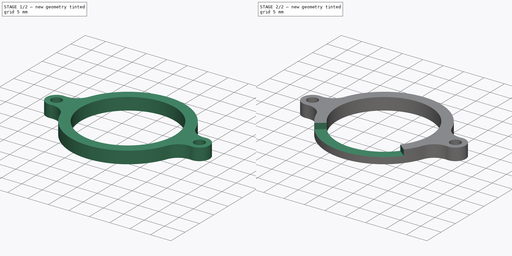
[diagram: build sequence overview — one tinted view per stage of 2, left to right]
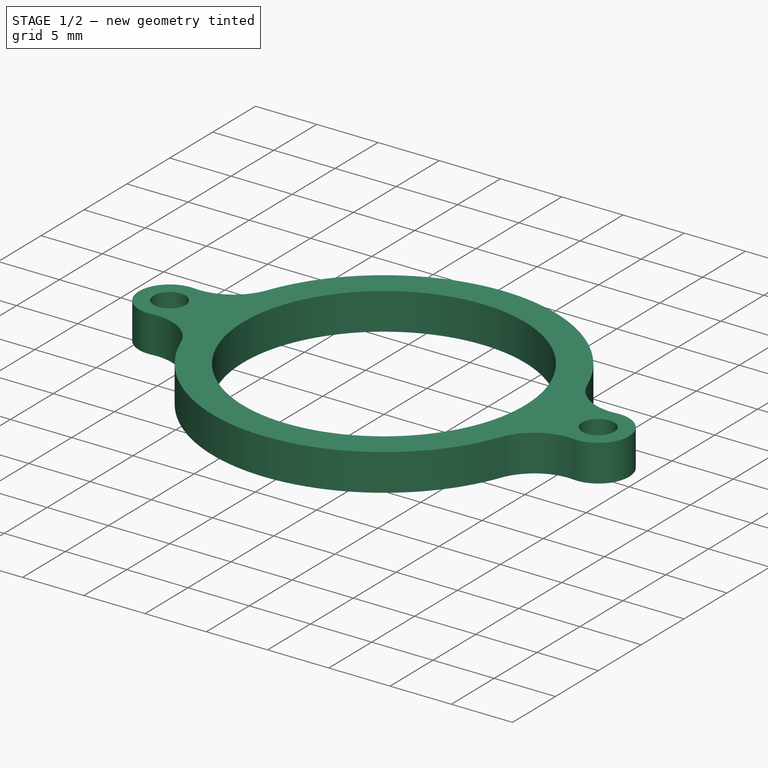
[diagram: stage 1 of 2 — iso view after this stage's code; geometry added in this stage tinted green]
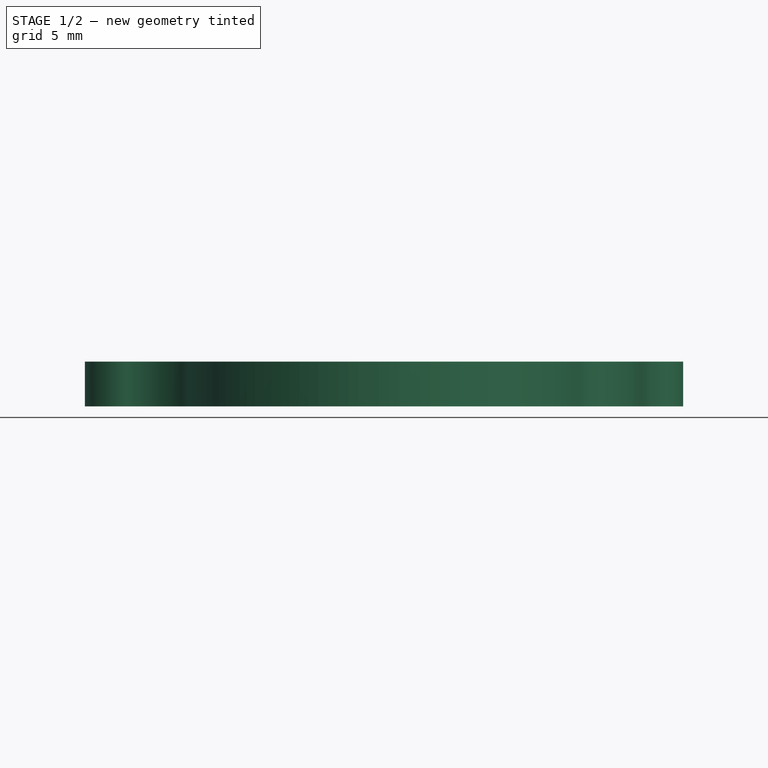
[diagram: stage 1 of 2 — front view after this stage's code; geometry added in this stage tinted green]
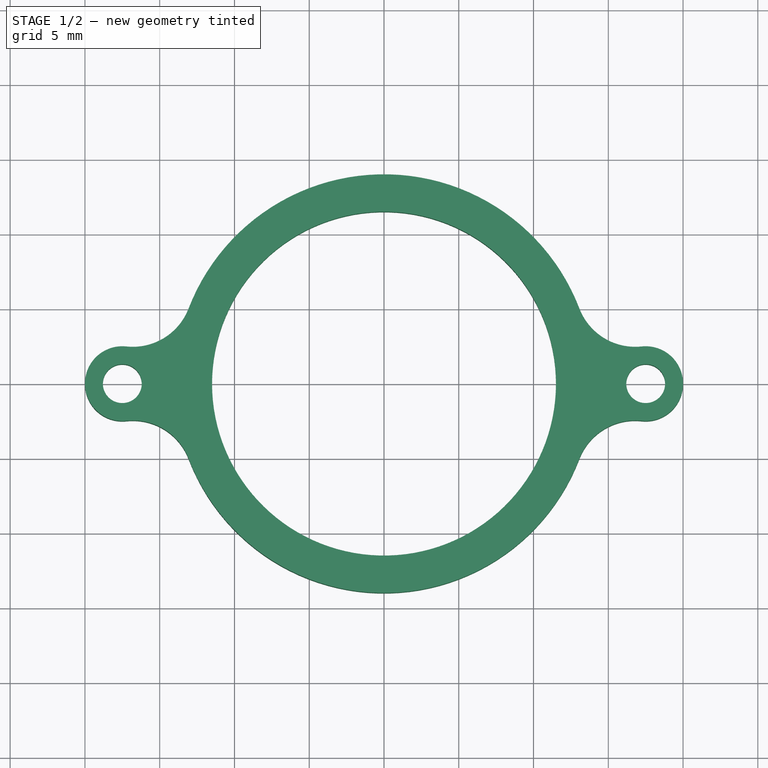
[diagram: stage 1 of 2 — top view after this stage's code; geometry added in this stage tinted green]
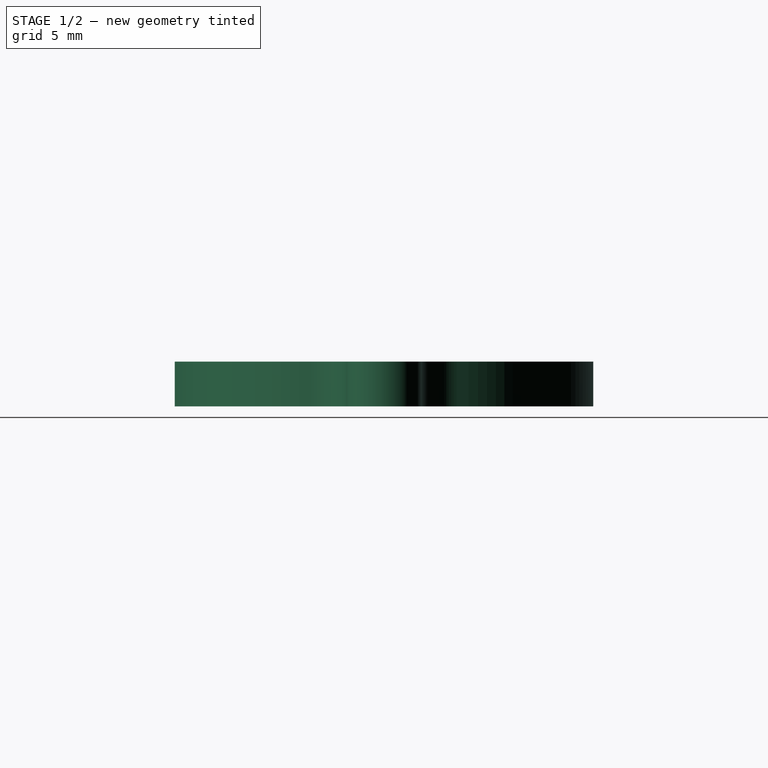
[diagram: stage 1 of 2 — right view after this stage's code; geometry added in this stage tinted green]
FCSTD DOCUMENT  (FreeCAD 0.18.3R)
Label: speaker-clip
License: CreativeCommons Attribution
LicenseURL: http://creativecommons.org/licenses/by/4.0/
objects: Sketcher::SketchObject×2, PartDesign::Pad×1, PartDesign::Pocket×1, PartDesign::Body×1
note: 7 computed .brp shape members not serialized (recipe doc carries the construction recipe); baked Part::Feature solids carry a one-line shape summary decoded from their .brp

FEATURE [Sketcher::SketchObject] Sketch
  MapMode = 5
  Support = -> [XY_Plane]
  sketch-geometry (11):
    g0: Circle CenterX=0 CenterY=0 CenterZ=0 NormalX=0 NormalY=0 NormalZ=1 AngleXU=0 Radius=11.5
    g1: Circle CenterX=-17.5 CenterY=0 CenterZ=0 NormalX=0 NormalY=0 NormalZ=1 AngleXU=0 Radius=1.3
    g2: Circle CenterX=17.5 CenterY=0 CenterZ=0 NormalX=0 NormalY=0 NormalZ=1 AngleXU=0 Radius=1.3
    g3: ArcOfCircle CenterX=0 CenterY=0 CenterZ=0 NormalX=0 NormalY=0 NormalZ=1 AngleXU=0 Radius=14 StartAngle=0.367208 EndAngle=2.77438
    g4: ArcOfCircle CenterX=17.5 CenterY=0 CenterZ=0 NormalX=0 NormalY=0 NormalZ=1 AngleXU=0 Radius=2.5 StartAngle=4.60449 EndAngle=7.96188
    g5: ArcOfCircle CenterX=0 CenterY=0 CenterZ=0 NormalX=0 NormalY=0 NormalZ=1 AngleXU=0 Radius=14 StartAngle=3.5088 EndAngle=5.91598
    g6: ArcOfCircle CenterX=-16.8 CenterY=6.4622 CenterZ=0 NormalX=0 NormalY=0 NormalZ=1 AngleXU=0 Radius=4 StartAngle=4.60449 EndAngle=5.91598
    g7: ArcOfCircle CenterX=-16.8 CenterY=-6.4622 CenterZ=0 NormalX=0 NormalY=0 NormalZ=1 AngleXU=0 Radius=4 StartAngle=0.367208 EndAngle=1.6787
    g8: ArcOfCircle CenterX=16.8 CenterY=-6.4622 CenterZ=0 NormalX=0 NormalY=0 NormalZ=1 AngleXU=0 Radius=4 StartAngle=1.46289 EndAngle=2.77438
    g9: ArcOfCircle CenterX=16.8 CenterY=6.4622 CenterZ=0 NormalX=0 NormalY=0 NormalZ=1 AngleXU=0 Radius=4 StartAngle=3.5088 EndAngle=4.82029
    g10: ArcOfCircle CenterX=-17.5 CenterY=0 CenterZ=0 NormalX=0 NormalY=0 NormalZ=1 AngleXU=0 Radius=2.5 StartAngle=1.46289 EndAngle=4.82029
  constraints (27):
    c: Coincident(g0,g-1)
    c: PointOnObject(g1,g-1)
    c: Coincident(g3,g0)
    c: Coincident(g4,g2)
    c: Coincident(g5,g0)
    c: Tangent(g7,g5) = 1.5708
    c: Tangent(g6,g3) = 1.5708
    c: Equal(g5,g3)
    c: Tangent(g8,g5) = 1.5708
    c: Tangent(g8,g4) = 1.5708
    c: Tangent(g9,g4) = 1.5708
    c: Tangent(g9,g3) = 1.5708
    c: Coincident(g10,g1)
    c: Tangent(g10,g7) = 1.5708
    c: Tangent(g10,g6) = 1.5708
    c: Equal(g4,g10)
    c: Symmetric(g1,g2,g0)
    c: DistanceX(g1,g2) = 35
    c: Radius(g0) = 11.5
    c: Equal(g9,g6)
    c: Equal(g6,g7)
    c: Radius(g1) = 1.3
    c: Radius(g10) = 2.5
    c: Radius(g3) = 14
    c: Radius(g6) = 4
    c: Equal(g2,g1)
    c: Equal(g8,g9)
FEATURE [PartDesign::Pad] Pad
  Length = 3
  Length2 = 100
  Profile = -> Sketch
  Refine = true
  Type = 0
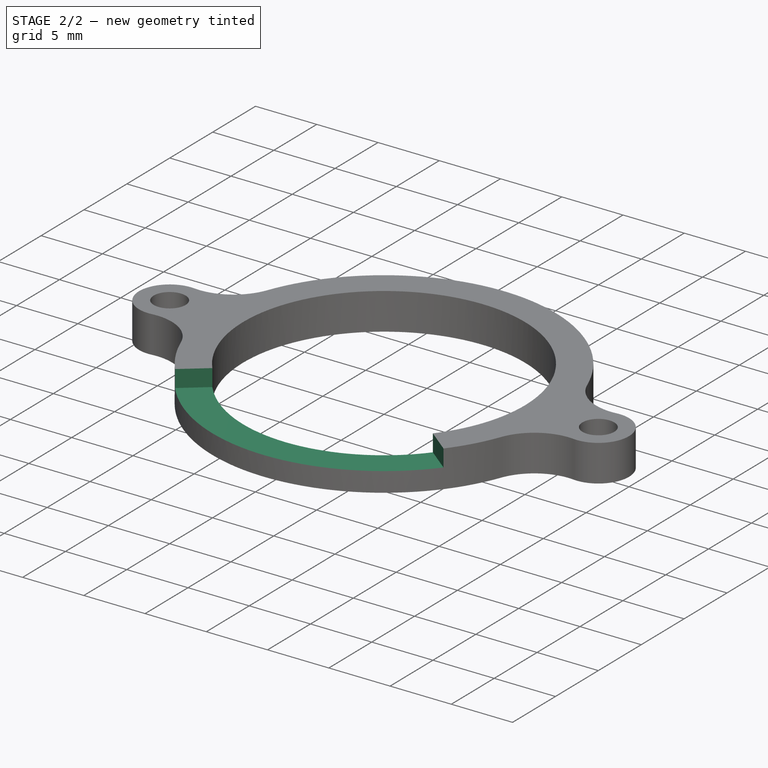
[diagram: stage 2 of 2 — iso view after this stage's code; geometry added in this stage tinted green]
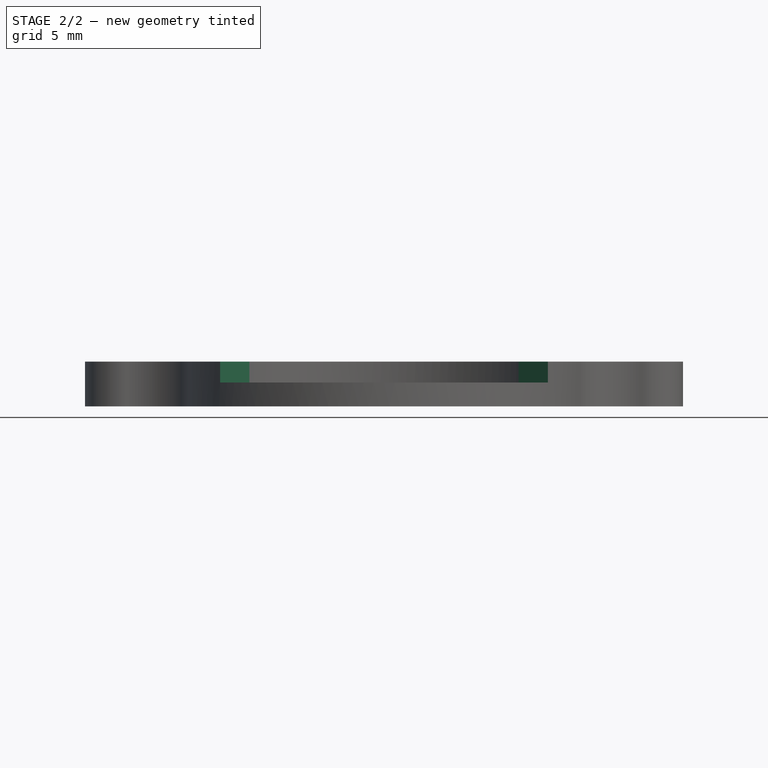
[diagram: stage 2 of 2 — front view after this stage's code; geometry added in this stage tinted green]
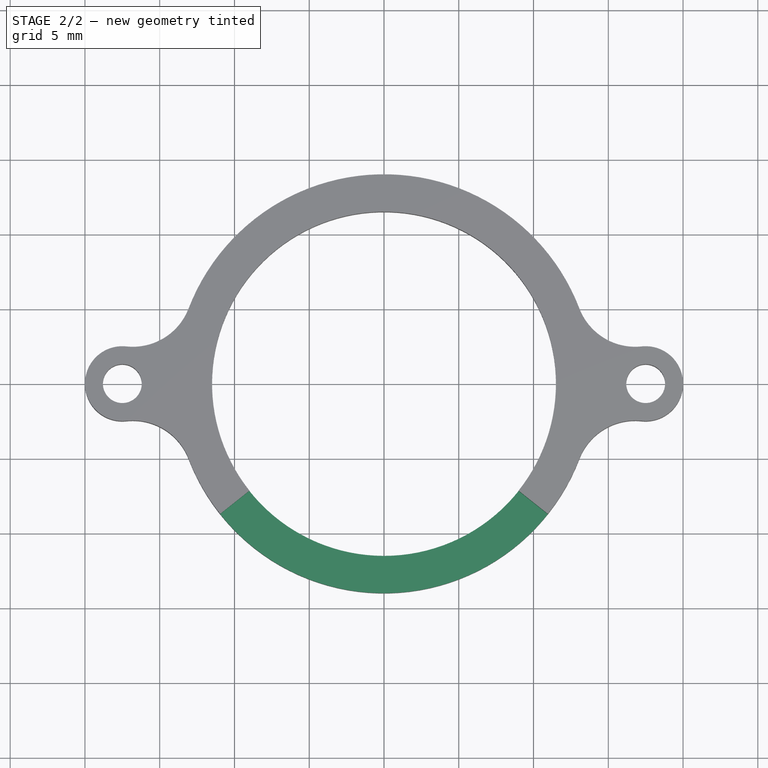
[diagram: stage 2 of 2 — top view after this stage's code; geometry added in this stage tinted green]
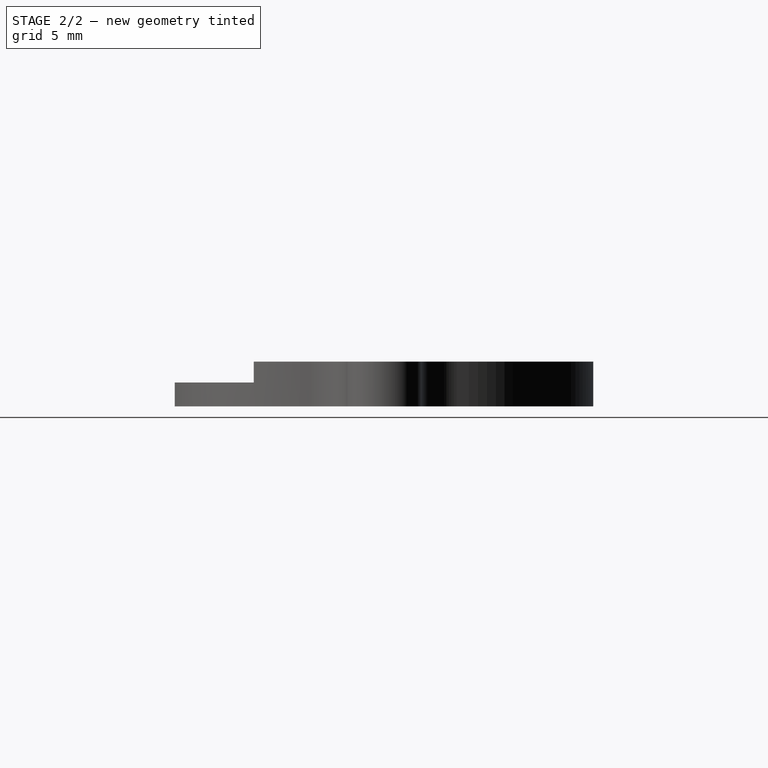
[diagram: stage 2 of 2 — right view after this stage's code; geometry added in this stage tinted green]
FEATURE [Sketcher::SketchObject] Sketch001
  ExternalGeometry = -> [Pad]
  MapMode = 5
  Placement = pos=(0,0,3) rot=(0,0,1;0rad)
  Support = -> [Pad]
  sketch-geometry (4):
    g0: ArcOfCircle CenterX=0 CenterY=0 CenterZ=0 NormalX=0 NormalY=0 NormalZ=1 AngleXU=0 Radius=11.5 StartAngle=3.81354 EndAngle=5.61123
    g1: ArcOfCircle CenterX=0 CenterY=0 CenterZ=0 NormalX=0 NormalY=0 NormalZ=1 AngleXU=0 Radius=14 StartAngle=3.81354 EndAngle=5.61123
    g2: LineSegment StartX=-10.9565 StartY=-8.7152 StartZ=0 EndX=-9 EndY=-7.15891 EndZ=0
    g3: LineSegment StartX=10.9565 StartY=-8.7152 StartZ=0 EndX=9 EndY=-7.15891 EndZ=0
  constraints (12):
    c: Coincident(g0,g-1)
    c: PointOnObject(g0,g-3)
    c: Coincident(g1,g0)
    c: PointOnObject(g1,g-4)
    c: Coincident(g2,g1)
    c: Coincident(g2,g0)
    c: Coincident(g3,g1)
    c: Coincident(g3,g0)
    c: Perpendicular(g0,g2)
    c: Perpendicular(g-3,g3)
    c: Symmetric(g0,g0,g-2)
    c: DistanceX(g0,g0) = 18
FEATURE [PartDesign::Pocket] Pocket
  BaseFeature = -> Pad
  Length = 1.4
  Length2 = 100
  Profile = -> Sketch001
  Refine = true
  Type = 0
FEATURE [PartDesign::Body] Body
  Group = -> [Sketch,Pad,Sketch001,Pocket]
  Origin = -> Origin
  Tip = -> Pocket
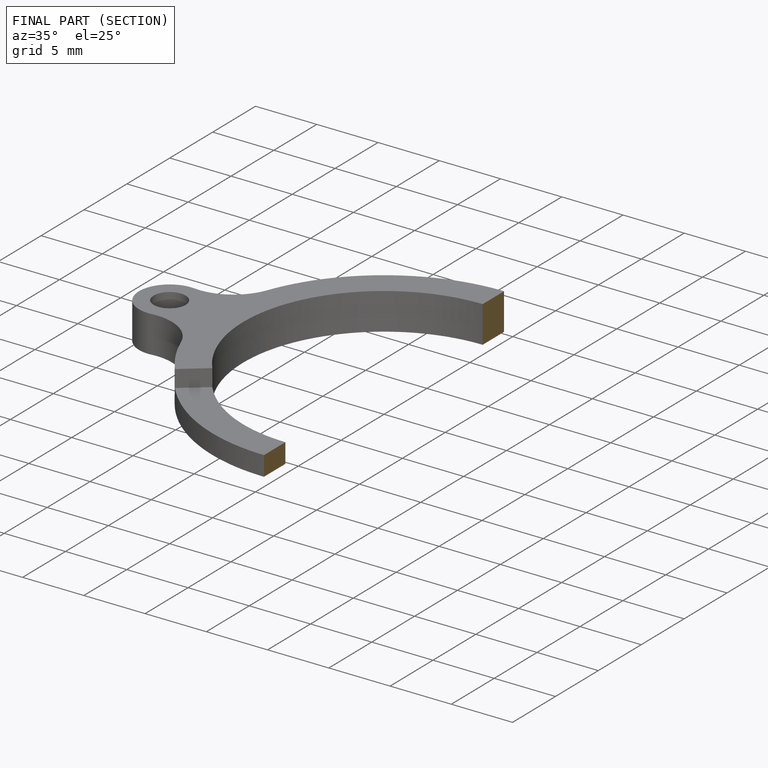
[diagram: finished part — half-section view (interior)]
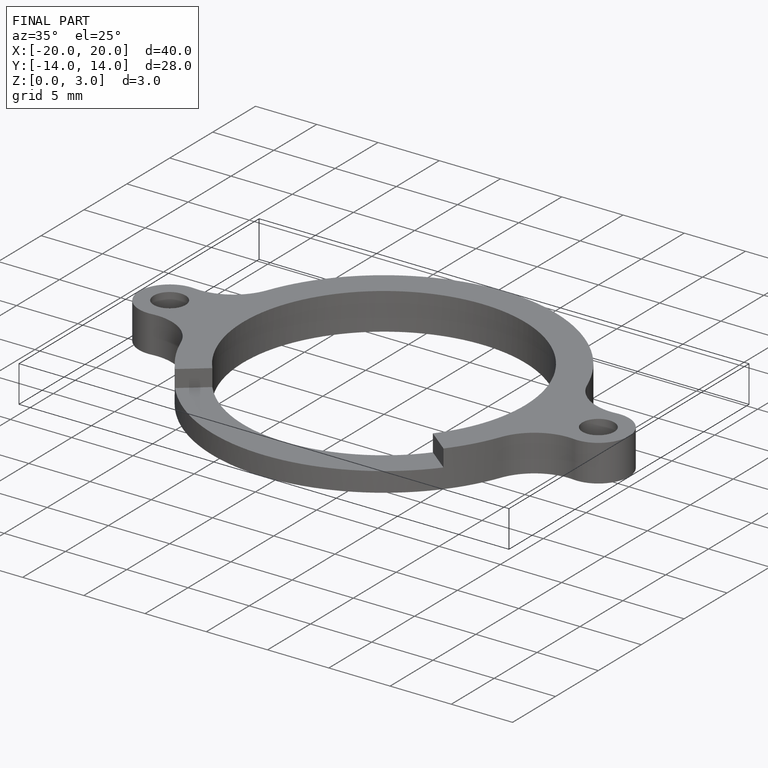
[diagram: finished part — iso view with bounding-box wireframe]
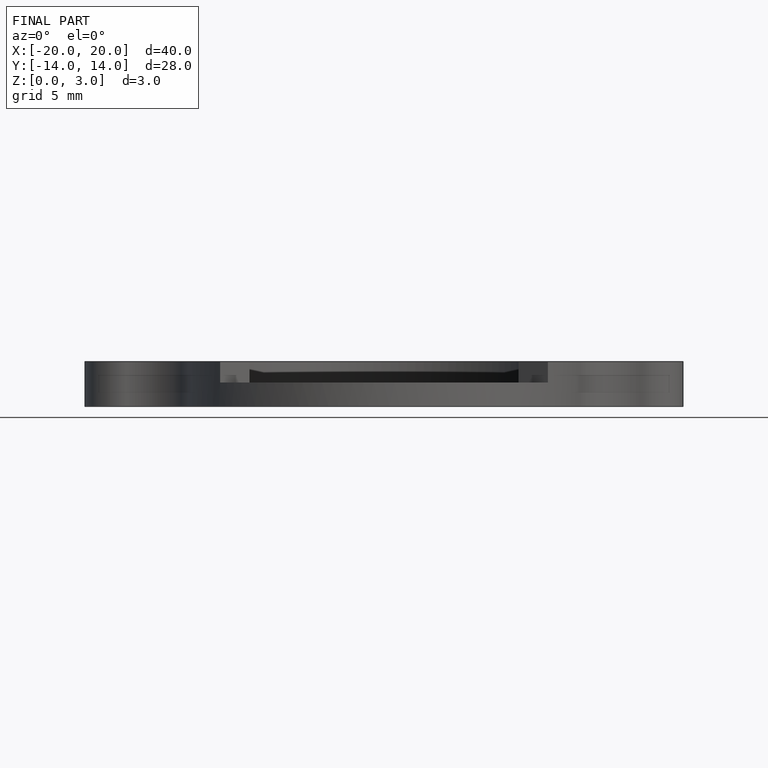
[diagram: finished part — front view with bounding-box wireframe]
